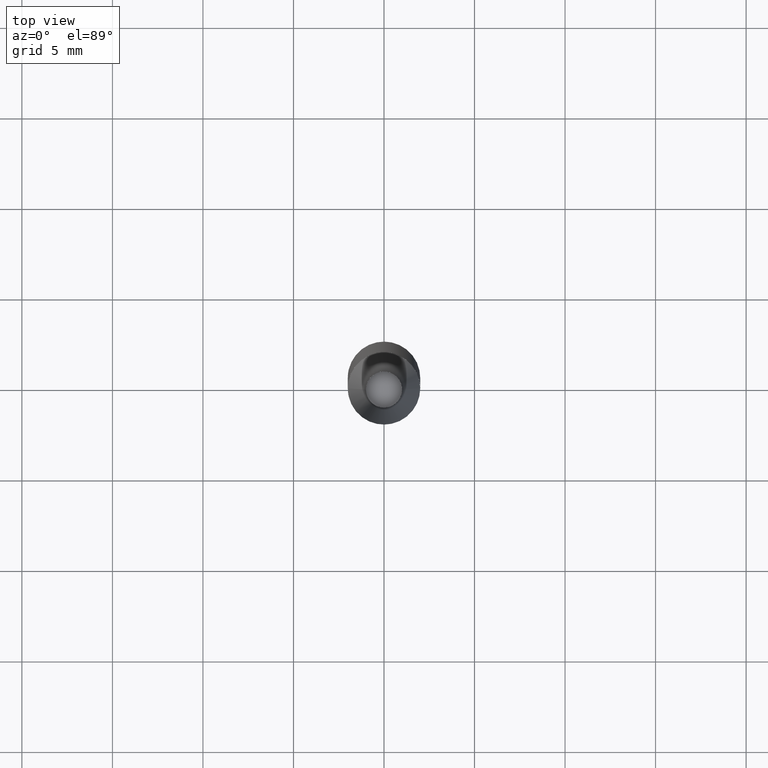
[diagram: clean part render]
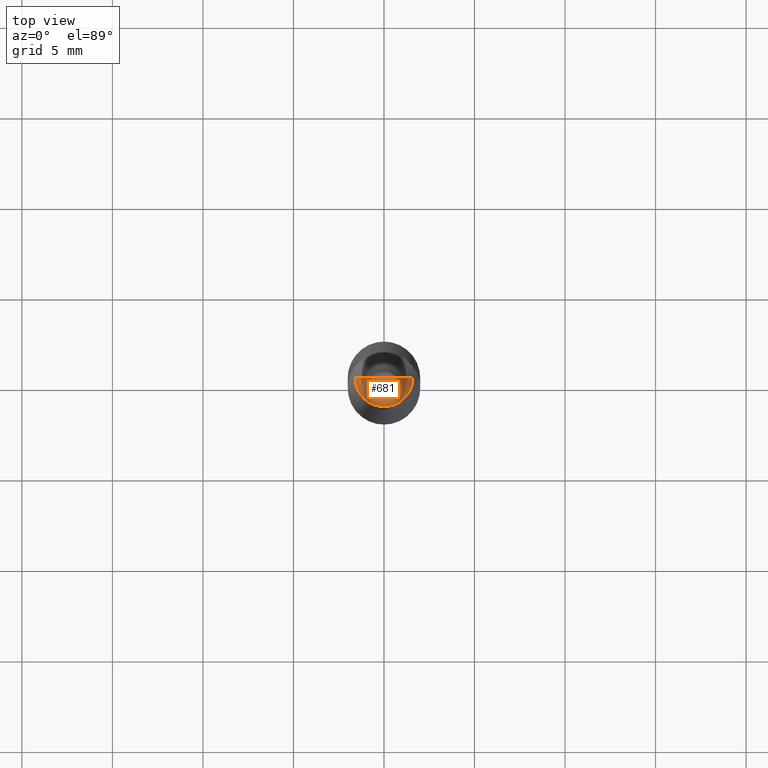
[diagram: same view with one face highlighted and labeled with its STEP entity id]
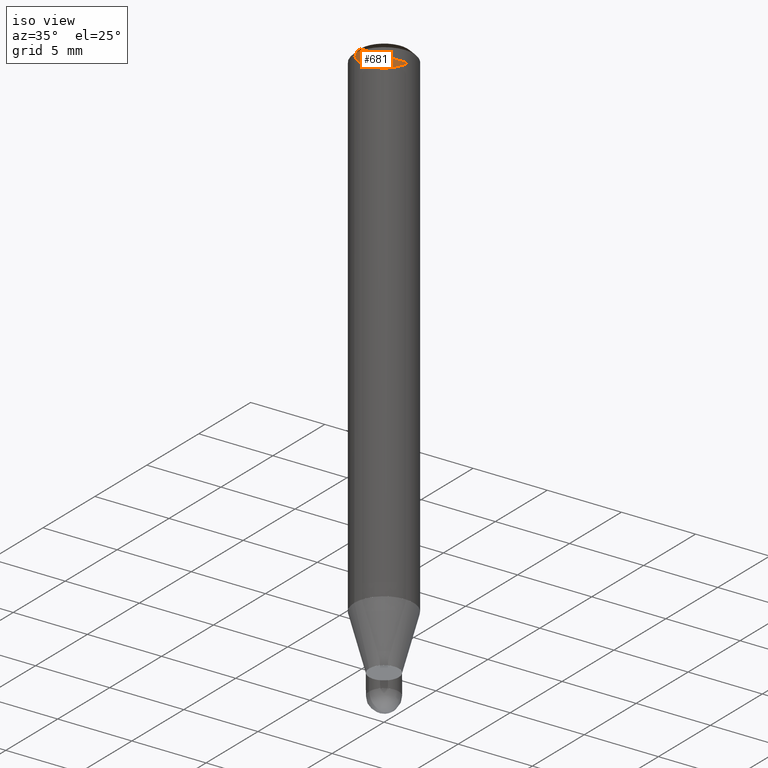
[diagram: same view with one face highlighted and labeled with its STEP entity id]
A machine part, top view. The second image highlights one B-rep face of the part: STEP entity #681.
A second angle (iso view) of the same face is appended — the face is thin or edge-on in the first view.
In plain terms, the highlighted face is a freeform B-spline surface patch.
Its self-contained STEP definition (entity closure, byte-faithful):
#368=CARTESIAN_POINT('',(1.6,0.0,33.867949192431));
#372=CARTESIAN_POINT('',(-1.6,0.0,33.867949192431));
#373=CARTESIAN_POINT('',(0.0,0.0,33.867949192431));
#380=CARTESIAN_POINT('',(-1.6,-1.6,33.867949192431));
#381=CARTESIAN_POINT('',(0.0,-1.6,33.867949192431));
#382=CARTESIAN_POINT('',(1.6,-1.6,33.867949192431));
#666=(
BOUNDED_SURFACE()
B_SPLINE_SURFACE(1,2,(
(#372,#380,#381,#382,#368),
(#373,#373,#373,#373,#373)
), .UNSPECIFIED.,.F.,.F.,.F.)
B_SPLINE_SURFACE_WITH_KNOTS((2,2),(3,2,3),(
0.0,1.0),(
0.0,0.5,1.0), .UNSPECIFIED.)
GEOMETRIC_REPRESENTATION_ITEM()
RATIONAL_B_SPLINE_SURFACE(((1.0,0.707106781187,1.0,0.707106781187,1.0),
(1.0,0.707106781187,1.0,0.707106781187,1.0)
))
REPRESENTATION_ITEM('')
SURFACE()
);
#667=(
BOUNDED_CURVE()
B_SPLINE_CURVE(1,(#373,#368),.UNSPECIFIED.,.F.,.F.)
B_SPLINE_CURVE_WITH_KNOTS((2,2),
(0.0,1.0),.UNSPECIFIED.)
CURVE()
GEOMETRIC_REPRESENTATION_ITEM()
RATIONAL_B_SPLINE_CURVE((1.0,1.0))
REPRESENTATION_ITEM('')
);
#668=(
BOUNDED_CURVE()
B_SPLINE_CURVE(2,(#368,#382,#381,#380,#372),.UNSPECIFIED.,.F.,.F.)
B_SPLINE_CURVE_WITH_KNOTS((3,2,3),
(0.0,0.5,1.0),.UNSPECIFIED.)
CURVE()
GEOMETRIC_REPRESENTATION_ITEM()
RATIONAL_B_SPLINE_CURVE((1.0,0.707106781187,1.0,0.707106781187,1.0))
REPRESENTATION_ITEM('')
);
#669=(
BOUNDED_CURVE()
B_SPLINE_CURVE(1,(#372,#373),.UNSPECIFIED.,.F.,.F.)
B_SPLINE_CURVE_WITH_KNOTS((2,2),
(0.0,1.0),.UNSPECIFIED.)
CURVE()
GEOMETRIC_REPRESENTATION_ITEM()
RATIONAL_B_SPLINE_CURVE((1.0,1.0))
REPRESENTATION_ITEM('')
);
#670=VERTEX_POINT('',#368);
#671=VERTEX_POINT('',#372);
#672=VERTEX_POINT('',#373);
#673=EDGE_CURVE('',#672,#670,#667,.T.);
#674=EDGE_CURVE('',#670,#671,#668,.T.);
#675=EDGE_CURVE('',#671,#672,#669,.T.);
#676=ORIENTED_EDGE('',*,*,#673,.T.);
#677=ORIENTED_EDGE('',*,*,#674,.T.);
#678=ORIENTED_EDGE('',*,*,#675,.T.);
#679=EDGE_LOOP('',(#676,#677,#678));
#680=FACE_OUTER_BOUND('',#679,.T.);
#681=ADVANCED_FACE('',(#680),#666,.T.);